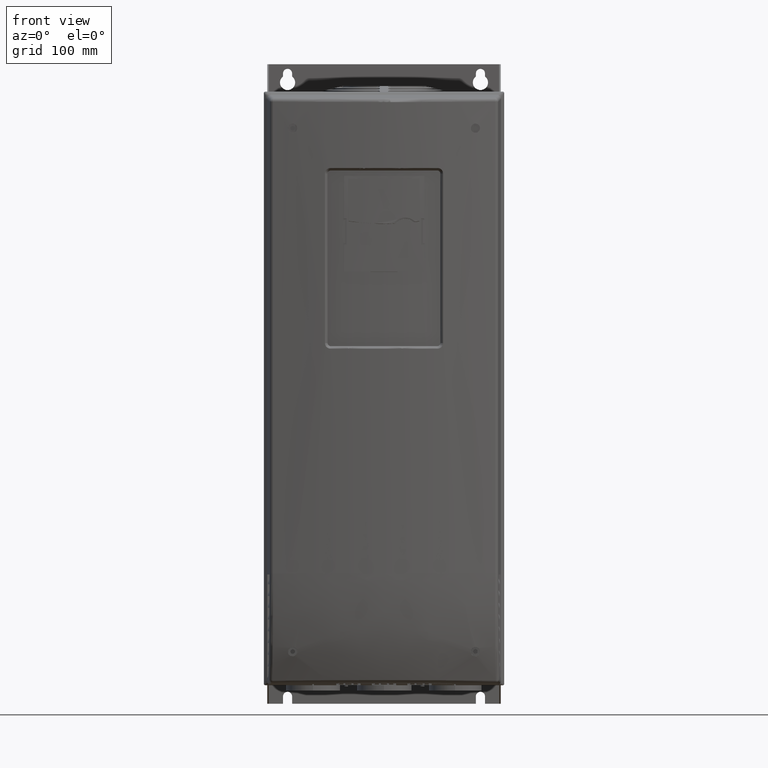
[diagram: clean part render]
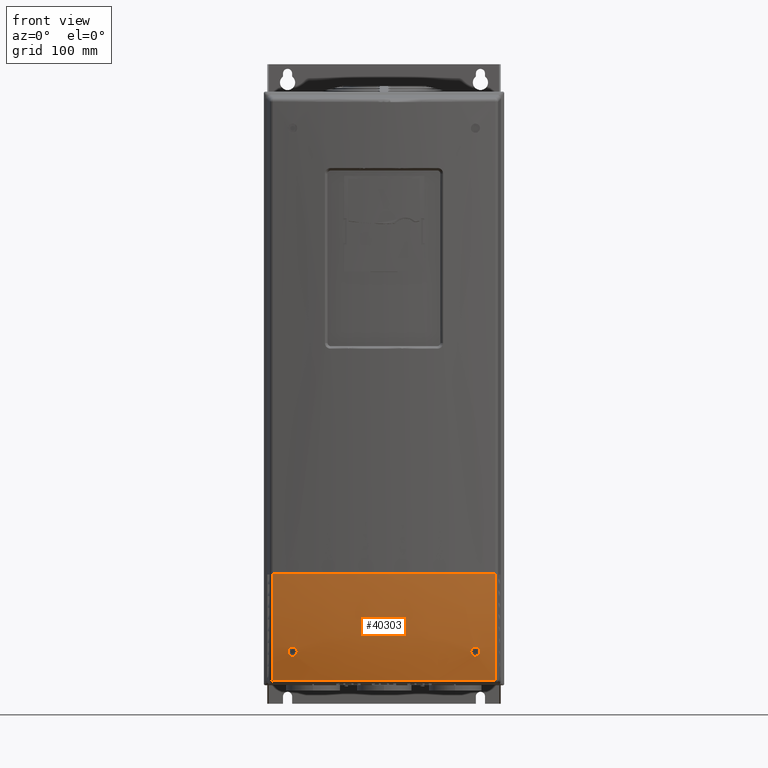
[diagram: same view with one face highlighted and labeled with its STEP entity id]
A machine part, front view. The second image highlights one B-rep face of the part: STEP entity #40303.
In plain terms, the highlighted face is a freeform B-spline surface patch.
Its self-contained STEP definition (entity closure, byte-faithful):
#4827=CARTESIAN_POINT('',(1.101320609583E2,-2.304048895941E2,
-2.913278149038E2));
#4828=CARTESIAN_POINT('',(1.100506029678E2,-2.319915761331E2,
-2.871544017577E2));
#4829=CARTESIAN_POINT('',(1.098931074956E2,-2.350864953219E2,
-2.787557593048E2));
#4830=CARTESIAN_POINT('',(1.096992892918E2,-2.391086613840E2,
-2.658297077553E2));
#4831=CARTESIAN_POINT('',(1.095520418093E2,-2.421866566470E2,
-2.526217708402E2));
#4832=CARTESIAN_POINT('',(1.094510429064E2,-2.442772821100E2,
-2.392407150672E2));
#4833=CARTESIAN_POINT('',(1.093846351767E2,-2.455942037765E2,
-2.258653763669E2));
#4834=CARTESIAN_POINT('',(1.093387813199E2,-2.464916022303E2,
-2.124952482724E2));
#4835=CARTESIAN_POINT('',(1.093135048392E2,-2.469758972093E2,
-2.013420425141E2));
#4836=CARTESIAN_POINT('',(1.093026243953E2,-2.471953853999E2,
-1.935371112900E2));
#4837=CARTESIAN_POINT('',(1.092975908271E2,-2.472785202483E2,
-1.890628739313E2));
#4838=CARTESIAN_POINT('',(1.092977658770E2,-2.473051293631E2,
-1.868440288470E2));
#4839=CARTESIAN_POINT('',(1.092977528199E2,-2.473051317637E2,
-1.856935594504E2));
#4886=CARTESIAN_POINT('',(-1.092974865305E2,-2.473048359104E2,
-1.856935515472E2));
#4887=CARTESIAN_POINT('',(-1.092974734999E2,-2.473048386996E2,
-1.868440262846E2));
#4888=CARTESIAN_POINT('',(-1.092985026869E2,-2.472784424484E2,
-1.890628352568E2));
#4889=CARTESIAN_POINT('',(-1.093028179841E2,-2.471951973438E2,
-1.935370752775E2));
#4890=CARTESIAN_POINT('',(-1.093139046268E2,-2.469757574579E2,
-2.013419937613E2));
#4891=CARTESIAN_POINT('',(-1.093387095266E2,-2.464913987685E2,
-2.124951970465E2));
#4892=CARTESIAN_POINT('',(-1.093843295284E2,-2.455939853500E2,
-2.258653117741E2));
#4893=CARTESIAN_POINT('',(-1.094504034138E2,-2.442770473695E2,
-2.392406392168E2));
#4894=CARTESIAN_POINT('',(-1.095511400515E2,-2.421864370195E2,
-2.526216611757E2));
#4895=CARTESIAN_POINT('',(-1.096979477471E2,-2.391084991097E2,
-2.658296346520E2));
#4896=CARTESIAN_POINT('',(-1.098919796975E2,-2.350864391640E2,
-2.787553245186E2));
#4897=CARTESIAN_POINT('',(-1.100479926023E2,-2.319917192020E2,
-2.871542558709E2));
#4898=CARTESIAN_POINT('',(-1.101293483773E2,-2.304051315999E2,
-2.913275009496E2));
#4903=CARTESIAN_POINT('',(8.848588079722E-4,3.461277636318E2,
-1.856874586016E2));
#4904=DIRECTION('',(3.971693170988E-7,-1.021186097279E-5,9.999999999478E-1));
#4905=DIRECTION('',(-6.417258386945E-10,-9.999999999479E-1,-1.021186097252E-5));
#4906=AXIS2_PLACEMENT_3D('',#4903,#4904,#4905);
#4911=CARTESIAN_POINT('',(1.101320609583E2,-2.304048895941E2,
-2.913278149038E2));
#4912=CARTESIAN_POINT('',(7.385409573487E1,-2.372679962731E2,
-2.909818859428E2));
#4913=CARTESIAN_POINT('',(1.302314507029E-3,-2.442052865352E2,
-2.906279720854E2));
#4914=CARTESIAN_POINT('',(-7.385137022095E1,-2.372681995672E2,
-2.909815770135E2));
#4915=CARTESIAN_POINT('',(-1.101293483773E2,-2.304051315999E2,
-2.913275009496E2));
#4920=CARTESIAN_POINT('',(8.848587906765E-4,3.461277636322E2,
-1.856875021490E2));
#4921=DIRECTION('',(3.971693170988E-7,-1.021186097279E-5,9.999999999478E-1));
#4922=DIRECTION('',(-1.811336002445E-1,-9.834584987497E-1,-9.971000753956E-6));
#4923=AXIS2_PLACEMENT_3D('',#4920,#4921,#4922);
#4928=CARTESIAN_POINT('',(-8.550046154722E1,-2.436981639243E2,
-2.627869112690E2));
#4929=CARTESIAN_POINT('',(-8.550045929069E1,-2.438241993651E2,
-2.622862034691E2));
#4930=CARTESIAN_POINT('',(-8.567220216366E1,-2.440423080599E2,
-2.613043767913E2));
#4931=CARTESIAN_POINT('',(-8.632761741411E1,-2.442450502425E2,
-2.600609199942E2));
#4932=CARTESIAN_POINT('',(-8.736218451978E1,-2.443295141705E2,
-2.590504856265E2));
#4933=CARTESIAN_POINT('',(-8.861586800829E1,-2.442862662094E2,
-2.584285252315E2));
#4934=CARTESIAN_POINT('',(-8.957547782369E1,-2.441759331896E2,
-2.582809529872E2));
#4935=CARTESIAN_POINT('',(-9.005915760830E1,-2.441015437112E2,
-2.582872659313E2));
#19101=CARTESIAN_POINT('',(9.449954353352E1,-2.423419623816E2,
-2.627866925673E2));
#19102=CARTESIAN_POINT('',(9.449954622427E1,-2.422199639328E2,
-2.632713600317E2));
#19103=CARTESIAN_POINT('',(9.434248198646E1,-2.419964036259E2,
-2.642414482671E2));
#19104=CARTESIAN_POINT('',(9.364321953644E1,-2.417563778545E2,
-2.655680911842E2));
#19105=CARTESIAN_POINT('',(9.254734598926E1,-2.416503197242E2,
-2.665846259600E2));
#19106=CARTESIAN_POINT('',(9.131046296426E1,-2.416813174468E2,
-2.671657046624E2));
#19107=CARTESIAN_POINT('',(9.033916959247E1,-2.417910188196E2,
-2.673004864129E2));
#19108=CARTESIAN_POINT('',(8.985018762889E1,-2.418691220411E2,
-2.672842450769E2));
#19113=CARTESIAN_POINT('',(8.985018762889E1,-2.418691220411E2,
-2.672842450769E2));
#19114=CARTESIAN_POINT('',(8.939924176572E1,-2.419411499015E2,
-2.672692670945E2));
#19115=CARTESIAN_POINT('',(8.849676430585E1,-2.421213965778E2,
-2.671058572406E2));
#19116=CARTESIAN_POINT('',(8.723724034697E1,-2.424930439354E2,
-2.664290114082E2));
#19117=CARTESIAN_POINT('',(8.628590484089E1,-2.428962912465E2,
-2.654489460352E2));
#19118=CARTESIAN_POINT('',(8.564672930436E1,-2.433205175766E2,
-2.641903417675E2));
#19119=CARTESIAN_POINT('',(8.549960305414E1,-2.435800778622E2,
-2.632578302971E2));
#19120=CARTESIAN_POINT('',(8.549960305414E1,-2.436986592440E2,
-2.627867315135E2));
#19132=CARTESIAN_POINT('',(9.014299782667E1,-2.440888356111E2,
-2.582890113219E2));
#19133=CARTESIAN_POINT('',(9.057026593845E1,-2.440212485701E2,
-2.583026364140E2));
#19134=CARTESIAN_POINT('',(9.145441822221E1,-2.438544141469E2,
-2.584468142436E2));
#19135=CARTESIAN_POINT('',(9.280736025355E1,-2.434826464064E2,
-2.591616781792E2));
#19136=CARTESIAN_POINT('',(9.377186381937E1,-2.430841325685E2,
-2.602229833576E2));
#19137=CARTESIAN_POINT('',(9.432360319442E1,-2.427316906251E2,
-2.613296135783E2));
#19138=CARTESIAN_POINT('',(9.449954076620E1,-2.424674323816E2,
-2.622882335510E2));
#19139=CARTESIAN_POINT('',(9.449954353352E1,-2.423419623816E2,
-2.627866925673E2));
#19151=CARTESIAN_POINT('',(8.549960305414E1,-2.436986592440E2,
-2.627867315135E2));
#19152=CARTESIAN_POINT('',(8.549960305414E1,-2.438234128135E2,
-2.622911119322E2));
#19153=CARTESIAN_POINT('',(8.566943407137E1,-2.440414586591E2,
-2.613105245576E2));
#19154=CARTESIAN_POINT('',(8.632605921590E1,-2.442476496407E2,
-2.600529081119E2));
#19155=CARTESIAN_POINT('',(8.742311323355E1,-2.443327610162E2,
-2.589990502848E2));
#19156=CARTESIAN_POINT('',(8.872105829719E1,-2.442783379818E2,
-2.583957437918E2));
#19157=CARTESIAN_POINT('',(8.967229876587E1,-2.441632927396E2,
-2.582740012665E2));
#19158=CARTESIAN_POINT('',(9.014299782667E1,-2.440888356111E2,
-2.582890113219E2));
#19680=CARTESIAN_POINT('',(-8.550046154722E1,-2.436981639243E2,
-2.627869112690E2));
#19681=CARTESIAN_POINT('',(-8.550046364530E1,-2.435809782608E2,
-2.632524610802E2));
#19682=CARTESIAN_POINT('',(-8.564482657164E1,-2.433224047293E2,
-2.641829294562E2));
#19683=CARTESIAN_POINT('',(-8.628873189862E1,-2.428927215004E2,
-2.654599860568E2));
#19684=CARTESIAN_POINT('',(-8.728939744455E1,-2.424733826669E2,
-2.664718797508E2));
#19685=CARTESIAN_POINT('',(-8.856535252539E1,-2.421043979186E2,
-2.671290475999E2));
#19686=CARTESIAN_POINT('',(-8.947780236640E1,-2.419262468275E2,
-2.672793299560E2));
#19687=CARTESIAN_POINT('',(-8.993075932892E1,-2.418560645296E2,
-2.672863435504E2));
#19692=CARTESIAN_POINT('',(-8.993075932892E1,-2.418560645296E2,
-2.672863435504E2));
#19693=CARTESIAN_POINT('',(-9.040815048016E1,-2.417820963366E2,
-2.672937354843E2));
#19694=CARTESIAN_POINT('',(-9.136429975735E1,-2.416761641609E2,
-2.671523321632E2));
#19695=CARTESIAN_POINT('',(-9.264194273076E1,-2.416519411305E2,
-2.665268455318E2));
#19696=CARTESIAN_POINT('',(-9.370196296401E1,-2.417706647505E2,
-2.654765213723E2));
#19697=CARTESIAN_POINT('',(-9.433405247992E1,-2.419965833604E2,
-2.642438099744E2));
#19698=CARTESIAN_POINT('',(-9.450039354305E1,-2.422180743876E2,
-2.632769586288E2));
#19699=CARTESIAN_POINT('',(-9.450039354305E1,-2.423414364400E2,
-2.627868753502E2));
#19751=CARTESIAN_POINT('',(-9.450039354305E1,-2.423414364400E2,
-2.627868753502E2));
#19752=CARTESIAN_POINT('',(-9.450039354305E1,-2.424600126450E2,
-2.623158049179E2));
#19753=CARTESIAN_POINT('',(-9.435254328022E1,-2.427152665023E2,
-2.613783337454E2));
#19754=CARTESIAN_POINT('',(-9.370532057680E1,-2.431218298528E2,
-2.601068240542E2));
#19755=CARTESIAN_POINT('',(-9.271485213973E1,-2.435098439797E2,
-2.591043275989E2));
#19756=CARTESIAN_POINT('',(-9.142687973523E1,-2.438597361648E2,
-2.584405373820E2));
#19757=CARTESIAN_POINT('',(-9.051263040488E1,-2.440318000381E2,
-2.582931846166E2));
#19758=CARTESIAN_POINT('',(-9.005915760830E1,-2.441015437112E2,
-2.582872659313E2));
#34249=CARTESIAN_POINT('',(1.101321002544E2,-2.304046035081E2,
-2.913285558185E2));
#34250=VERTEX_POINT('',#34249);
#34251=CARTESIAN_POINT('',(1.092980612679E2,-2.473052876142E2,
-1.856935250561E2));
#34253=VERTEX_POINT('',#34251);
#34260=CARTESIAN_POINT('',(-1.092974865305E2,-2.473048359104E2,
-1.856935515472E2));
#34262=VERTEX_POINT('',#34260);
#34274=CARTESIAN_POINT('',(8.844715819195E-4,-2.572857648122E2,
-1.856936205767E2));
#34275=VERTEX_POINT('',#34274);
#34305=VERTEX_POINT('',#4898);
#34307=VERTEX_POINT('',#19101);
#34308=VERTEX_POINT('',#19108);
#34309=VERTEX_POINT('',#19132);
#34310=VERTEX_POINT('',#19151);
#34311=VERTEX_POINT('',#19680);
#34312=VERTEX_POINT('',#19687);
#34313=VERTEX_POINT('',#4935);
#34314=VERTEX_POINT('',#19751);
#40204=CARTESIAN_POINT('',(1.145446212736E2,-2.290117392965E2,
-2.928023922504E2));
#40205=CARTESIAN_POINT('',(7.682944343515E1,-2.363028118448E2,
-2.928023922504E2));
#40206=CARTESIAN_POINT('',(9.637562376668E-4,-2.436626669535E2,
-2.928023922504E2));
#40207=CARTESIAN_POINT('',(-7.682751889015E1,-2.363028024534E2,
-2.928023922504E2));
#40208=CARTESIAN_POINT('',(-1.145427433543E2,-2.290117112924E2,
-2.928023922504E2));
#40209=CARTESIAN_POINT('',(1.143825911597E2,-2.320732351049E2,
-2.848097788484E2));
#40210=CARTESIAN_POINT('',(7.671918560744E1,-2.393436683596E2,
-2.848097788484E2));
#40211=CARTESIAN_POINT('',(1.026132401325E-3,-2.466809107795E2,
-2.848097788484E2));
#40212=CARTESIAN_POINT('',(-7.671713537961E1,-2.393436591652E2,
-2.848097788484E2));
#40213=CARTESIAN_POINT('',(-1.143805875260E2,-2.320732074308E2,
-2.848097788484E2));
#40214=CARTESIAN_POINT('',(1.140787160654E2,-2.378146905438E2,
-2.689516757696E2));
#40215=CARTESIAN_POINT('',(7.651241293120E1,-2.450464157943E2,
-2.689516757696E2));
#40216=CARTESIAN_POINT('',(1.135731415935E-3,-2.523413061024E2,
-2.689516757696E2));
#40217=CARTESIAN_POINT('',(-7.651014179468E1,-2.450464069823E2,
-2.689516757696E2));
#40218=CARTESIAN_POINT('',(-1.140764914645E2,-2.378146635077E2,
-2.689516757696E2));
#40219=CARTESIAN_POINT('',(1.138195792177E2,-2.427072814616E2,
-2.470305062534E2));
#40220=CARTESIAN_POINT('',(7.633626502613E1,-2.499059831626E2,
-2.470305062534E2));
#40221=CARTESIAN_POINT('',(1.048396752655E-3,-2.571661343955E2,
-2.470305062534E2));
#40222=CARTESIAN_POINT('',(-7.633416794346E1,-2.499059749908E2,
-2.470305062534E2));
#40223=CARTESIAN_POINT('',(-1.138175286406E2,-2.427072554412E2,
-2.470305062534E2));
#40224=CARTESIAN_POINT('',(1.136982686098E2,-2.449916517913E2,
-2.238267292539E2));
#40225=CARTESIAN_POINT('',(7.625411142771E1,-2.521748698993E2,
-2.238267292539E2));
#40226=CARTESIAN_POINT('',(7.032669769274E-4,-2.594210770202E2,
-2.238267292539E2));
#40227=CARTESIAN_POINT('',(-7.625270573559E1,-2.521748625567E2,
-2.238267292539E2));
#40228=CARTESIAN_POINT('',(-1.136969094422E2,-2.449916270399E2,
-2.238267292539E2));
#40229=CARTESIAN_POINT('',(1.136542931242E2,-2.458172364973E2,
-2.095880149874E2));
#40230=CARTESIAN_POINT('',(7.622445848590E1,-2.529948316804E2,
-2.095880149874E2));
#40231=CARTESIAN_POINT('',(4.513505263102E-4,-2.602369503001E2,
-2.095880149874E2));
#40232=CARTESIAN_POINT('',(-7.622355762815E1,-2.529948248589E2,
-2.095880149874E2));
#40233=CARTESIAN_POINT('',(-1.136534388114E2,-2.458172125369E2,
-2.095880149874E2));
#40234=CARTESIAN_POINT('',(1.136334315337E2,-2.462077362321E2,
-1.996993357069E2));
#40235=CARTESIAN_POINT('',(7.621045013198E1,-2.533826593254E2,
-1.996993357069E2));
#40236=CARTESIAN_POINT('',(2.736470363477E-4,-2.606232818638E2,
-1.996993357069E2));
#40237=CARTESIAN_POINT('',(-7.620990542775E1,-2.533826528524E2,
-1.996993357069E2));
#40238=CARTESIAN_POINT('',(-1.136329333907E2,-2.462077127986E2,
-1.996993357069E2));
#40239=CARTESIAN_POINT('',(1.136237682768E2,-2.463880731745E2,
-1.933679770551E2));
#40240=CARTESIAN_POINT('',(7.620398921210E1,-2.535617563419E2,
-1.933679770551E2));
#40241=CARTESIAN_POINT('',(1.637312157905E-4,-2.608018962170E2,
-1.933679770551E2));
#40242=CARTESIAN_POINT('',(-7.620366481406E1,-2.535617500783E2,
-1.933679770551E2));
#40243=CARTESIAN_POINT('',(-1.136234904506E2,-2.463880500572E2,
-1.933679770551E2));
#40244=CARTESIAN_POINT('',(1.136197209573E2,-2.464632775415E2,
-1.892972826242E2));
#40245=CARTESIAN_POINT('',(7.620129985496E1,-2.536364400685E2,
-1.892972826242E2));
#40246=CARTESIAN_POINT('',(1.011419976680E-4,-2.608765039200E2,
-1.892972826242E2));
#40247=CARTESIAN_POINT('',(-7.620110091133E1,-2.536364339213E2,
-1.892972826242E2));
#40248=CARTESIAN_POINT('',(-1.136195685915E2,-2.464632545997E2,
-1.892972826242E2));
#40249=CARTESIAN_POINT('',(1.136182981064E2,-2.464896182621E2,
-1.868924365456E2));
#40250=CARTESIAN_POINT('',(7.620035938782E1,-2.536625973636E2,
-1.868924365456E2));
#40251=CARTESIAN_POINT('',(7.419848352844E-5,-2.609026721329E2,
-1.868924365456E2));
#40252=CARTESIAN_POINT('',(-7.620021445126E1,-2.536625912660E2,
-1.868924365456E2));
#40253=CARTESIAN_POINT('',(-1.136181997505E2,-2.464895953950E2,
-1.868924365456E2));
#40254=CARTESIAN_POINT('',(1.136180444027E2,-2.464942920075E2,
-1.858748284090E2));
#40255=CARTESIAN_POINT('',(7.620019286965E1,-2.536672383107E2,
-1.858748284090E2));
#40256=CARTESIAN_POINT('',(6.823186208792E-5,-2.609073238845E2,
-1.858748284090E2));
#40257=CARTESIAN_POINT('',(-7.620005989318E1,-2.536672322240E2,
-1.858748284090E2));
#40258=CARTESIAN_POINT('',(-1.136179580074E2,-2.464942691568E2,
-1.858748284090E2));
#40259=CARTESIAN_POINT('',(1.136181392258E2,-2.464925451711E2,
-1.851743796097E2));
#40260=CARTESIAN_POINT('',(7.620025510668E1,-2.536655037326E2,
-1.851743796097E2));
#40261=CARTESIAN_POINT('',(7.046191762893E-5,-2.609055852682E2,
-1.851743796097E2));
#40262=CARTESIAN_POINT('',(-7.620011766006E1,-2.536654976419E2,
-1.851743796097E2));
#40263=CARTESIAN_POINT('',(-1.136180483602E2,-2.464925223140E2,
-1.851743796097E2));
#40264=CARTESIAN_POINT('',(1.136182825224E2,-2.464898987036E2,
-1.847361781187E2));
#40265=CARTESIAN_POINT('',(7.620034949875E1,-2.536628757636E2,
-1.847361781187E2));
#40266=CARTESIAN_POINT('',(7.349564477154E-5,-2.609029537593E2,
-1.847361781187E2));
#40267=CARTESIAN_POINT('',(-7.620020597109E1,-2.536628696672E2,
-1.847361781187E2));
#40268=CARTESIAN_POINT('',(-1.136181855754E2,-2.464898758383E2,
-1.847361781187E2));
#40269=CARTESIAN_POINT('',(1.136183758824E2,-2.464881726910E2,
-1.845125342004E2));
#40270=CARTESIAN_POINT('',(7.620041108843E1,-2.536611617957E2,
-1.845125342004E2));
#40271=CARTESIAN_POINT('',(7.538125729667E-5,-2.609012381784E2,
-1.845125342004E2));
#40272=CARTESIAN_POINT('',(-7.620026378113E1,-2.536611556961E2,
-1.845125342004E2));
#40273=CARTESIAN_POINT('',(-1.136182751556E2,-2.464881498205E2,
-1.845125342004E2));
#40274=B_SPLINE_SURFACE_WITH_KNOTS('',3,3,((#40204,#40205,#40206,#40207,#40208),
(#40209,#40210,#40211,#40212,#40213),(#40214,#40215,#40216,#40217,#40218),(
#40219,#40220,#40221,#40222,#40223),(#40224,#40225,#40226,#40227,#40228),
(#40229,#40230,#40231,#40232,#40233),(#40234,#40235,#40236,#40237,#40238),(
#40239,#40240,#40241,#40242,#40243),(#40244,#40245,#40246,#40247,#40248),
(#40249,#40250,#40251,#40252,#40253),(#40254,#40255,#40256,#40257,#40258),(
#40259,#40260,#40261,#40262,#40263),(#40264,#40265,#40266,#40267,#40268),
(#40269,#40270,#40271,#40272,#40273)),.UNSPECIFIED.,.F.,.F.,.F.,(4,1,1,1,1,1,1,
1,1,1,1,4),(4,1,4),(4.751446416867E-2,2.703977778414E-1,5.208458646280E-1,
6.456218212347E-1,7.703977778414E-1,8.327857561447E-1,8.951737344481E-1,
9.575617127514E-1,9.887557019031E-1,1.019949691055E0,1.034974845527E0,
1.048825177290E0),(8.937825345086E-2,1.103909622523E0,2.118442294840E0),
.UNSPECIFIED.);
#40275=ORIENTED_EDGE('',*,*,#40031,.T.);
#40276=ORIENTED_EDGE('',*,*,#39987,.F.);
#40278=ORIENTED_EDGE('',*,*,#40277,.T.);
#40279=ORIENTED_EDGE('',*,*,#40195,.F.);
#40280=ORIENTED_EDGE('',*,*,#40033,.T.);
#40281=EDGE_LOOP('',(#40275,#40276,#40278,#40279,#40280));
#40282=FACE_OUTER_BOUND('',#40281,.F.);
#40284=ORIENTED_EDGE('',*,*,#40283,.F.);
#40286=ORIENTED_EDGE('',*,*,#40285,.F.);
#40288=ORIENTED_EDGE('',*,*,#40287,.F.);
#40290=ORIENTED_EDGE('',*,*,#40289,.F.);
#40291=EDGE_LOOP('',(#40284,#40286,#40288,#40290));
#40292=FACE_BOUND('',#40291,.F.);
#40294=ORIENTED_EDGE('',*,*,#40293,.F.);
#40296=ORIENTED_EDGE('',*,*,#40295,.T.);
#40298=ORIENTED_EDGE('',*,*,#40297,.F.);
#40300=ORIENTED_EDGE('',*,*,#40299,.F.);
#40301=EDGE_LOOP('',(#40294,#40296,#40298,#40300));
#40302=FACE_BOUND('',#40301,.F.);
#40303=ADVANCED_FACE('',(#40282,#40292,#40302),#40274,.T.);
#4840=B_SPLINE_CURVE_WITH_KNOTS('',3,(#4827,#4828,#4829,#4830,#4831,#4832,#4833,
#4834,#4835,#4836,#4837,#4838,#4839),.UNSPECIFIED.,.F.,.F.,(4,1,1,1,1,1,1,1,1,1,
4),(0.E0,1.252832856595E-1,2.500949177968E-1,3.747556967419E-1,
4.995355340863E-1,6.244499017765E-1,7.496369965970E-1,8.749197260747E-1,
9.375570515385E-1,9.688487417400E-1,1.E0),.UNSPECIFIED.);
#4899=B_SPLINE_CURVE_WITH_KNOTS('',3,(#4886,#4887,#4888,#4889,#4890,#4891,#4892,
#4893,#4894,#4895,#4896,#4897,#4898),.UNSPECIFIED.,.F.,.F.,(4,1,1,1,1,1,1,1,1,1,
4),(0.E0,3.115111206819E-2,6.244296171213E-2,1.250806319862E-1,
2.503640733927E-1,3.755518894903E-1,5.004669903646E-1,6.252475565231E-1,
7.499090626265E-1,8.747214144952E-1,1.E0),.UNSPECIFIED.);
#4907=CIRCLE('',#4906,6.034135284754E2);
#4916=B_SPLINE_CURVE_WITH_KNOTS('',3,(#4911,#4912,#4913,#4914,#4915),
.UNSPECIFIED.,.F.,.F.,(4,1,4),(0.E0,4.999999640332E-1,1.E0),.UNSPECIFIED.);
#4924=CIRCLE('',#4923,6.034135284754E2);
#4936=B_SPLINE_CURVE_WITH_KNOTS('',3,(#4928,#4929,#4930,#4931,#4932,#4933,#4934,
#4935),.UNSPECIFIED.,.F.,.F.,(4,1,1,1,1,4),(0.E0,2.E-1,4.E-1,6.E-1,8.E-1,1.E0),
.UNSPECIFIED.);
#19109=B_SPLINE_CURVE_WITH_KNOTS('',3,(#19101,#19102,#19103,#19104,#19105,
#19106,#19107,#19108),.UNSPECIFIED.,.F.,.F.,(4,1,1,1,1,4),(0.E0,2.E-1,4.E-1,
6.E-1,8.E-1,1.E0),.UNSPECIFIED.);
#19121=B_SPLINE_CURVE_WITH_KNOTS('',3,(#19113,#19114,#19115,#19116,#19117,
#19118,#19119,#19120),.UNSPECIFIED.,.F.,.F.,(4,1,1,1,1,4),(0.E0,2.E-1,4.E-1,
6.E-1,8.E-1,1.E0),.UNSPECIFIED.);
#19140=B_SPLINE_CURVE_WITH_KNOTS('',3,(#19132,#19133,#19134,#19135,#19136,
#19137,#19138,#19139),.UNSPECIFIED.,.F.,.F.,(4,1,1,1,1,4),(0.E0,2.E-1,4.E-1,
6.E-1,8.E-1,1.E0),.UNSPECIFIED.);
#19159=B_SPLINE_CURVE_WITH_KNOTS('',3,(#19151,#19152,#19153,#19154,#19155,
#19156,#19157,#19158),.UNSPECIFIED.,.F.,.F.,(4,1,1,1,1,4),(0.E0,2.E-1,4.E-1,
6.E-1,8.E-1,1.E0),.UNSPECIFIED.);
#19688=B_SPLINE_CURVE_WITH_KNOTS('',3,(#19680,#19681,#19682,#19683,#19684,
#19685,#19686,#19687),.UNSPECIFIED.,.F.,.F.,(4,1,1,1,1,4),(0.E0,2.E-1,4.E-1,
6.E-1,8.E-1,1.E0),.UNSPECIFIED.);
#19700=B_SPLINE_CURVE_WITH_KNOTS('',3,(#19692,#19693,#19694,#19695,#19696,
#19697,#19698,#19699),.UNSPECIFIED.,.F.,.F.,(4,1,1,1,1,4),(0.E0,2.E-1,4.E-1,
6.E-1,8.E-1,1.E0),.UNSPECIFIED.);
#19759=B_SPLINE_CURVE_WITH_KNOTS('',3,(#19751,#19752,#19753,#19754,#19755,
#19756,#19757,#19758),.UNSPECIFIED.,.F.,.F.,(4,1,1,1,1,4),(0.E0,2.E-1,4.E-1,
6.E-1,8.E-1,1.E0),.UNSPECIFIED.);
#39987=EDGE_CURVE('',#34250,#34253,#4840,.T.);
#40031=EDGE_CURVE('',#34275,#34253,#4907,.T.);
#40033=EDGE_CURVE('',#34262,#34275,#4924,.T.);
#40195=EDGE_CURVE('',#34262,#34305,#4899,.T.);
#40277=EDGE_CURVE('',#34250,#34305,#4916,.T.);
#40283=EDGE_CURVE('',#34307,#34308,#19109,.T.);
#40285=EDGE_CURVE('',#34309,#34307,#19140,.T.);
#40287=EDGE_CURVE('',#34310,#34309,#19159,.T.);
#40289=EDGE_CURVE('',#34308,#34310,#19121,.T.);
#40293=EDGE_CURVE('',#34311,#34312,#19688,.T.);
#40295=EDGE_CURVE('',#34311,#34313,#4936,.T.);
#40297=EDGE_CURVE('',#34314,#34313,#19759,.T.);
#40299=EDGE_CURVE('',#34312,#34314,#19700,.T.);